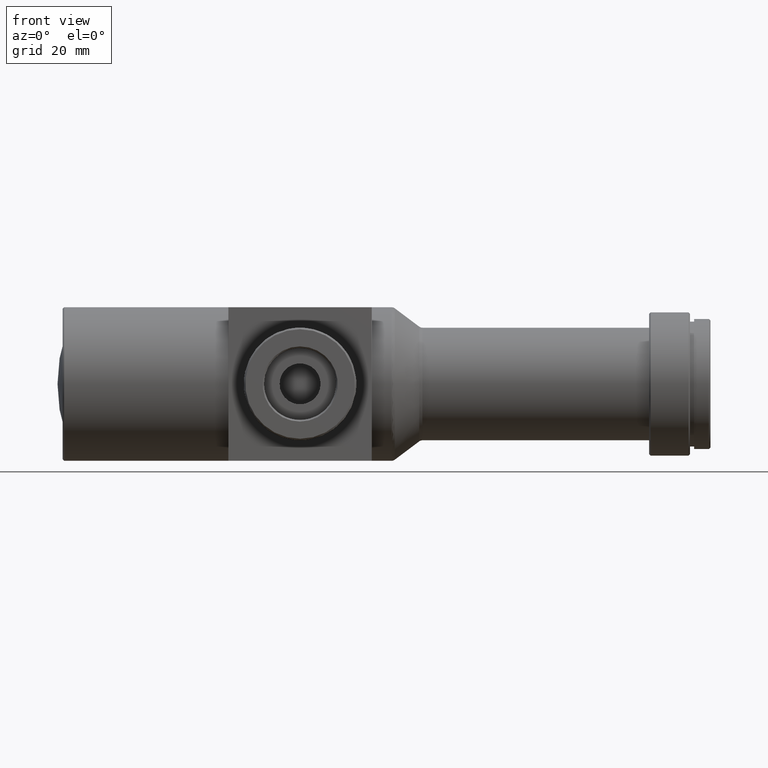
[diagram: clean part render]
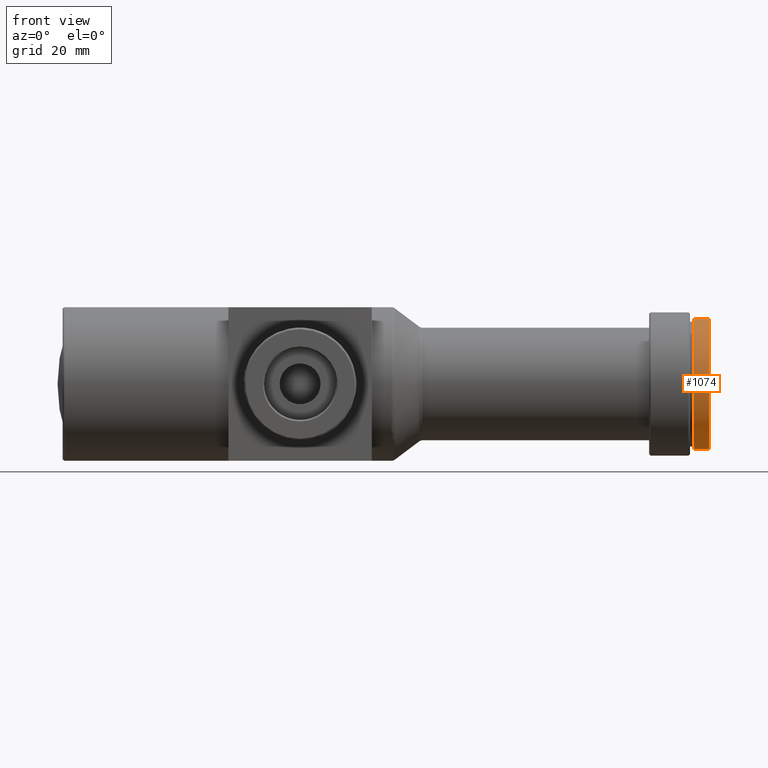
[diagram: same view with one face highlighted and labeled with its STEP entity id]
A machine part, front view. The second image highlights one B-rep face of the part: STEP entity #1074.
In plain terms, the highlighted cylindrical surface (bore or boss wall) has radius 12.7 mm, axis along (-1, -0, -0).
Its self-contained STEP definition (entity closure, byte-faithful):
#11 = AXIS2_PLACEMENT_3D ( 'NONE', #1099, #325, #984 ) ;
#96 = FACE_OUTER_BOUND ( 'NONE', #1103, .T. ) ;
#106 = FACE_OUTER_BOUND ( 'NONE', #750, .T. ) ;
#140 = EDGE_CURVE ( 'NONE', #597, #597, #670, .T. ) ;
#218 = VERTEX_POINT ( 'NONE', #439 ) ;
#246 = CIRCLE ( 'NONE', #11, 12.69999999999999396 ) ;
#301 = EDGE_CURVE ( 'NONE', #218, #218, #246, .T. ) ;
#325 = DIRECTION ( 'NONE',  ( 1.000000000000000000, 0.000000000000000000, 0.000000000000000000 ) ) ;
#439 = CARTESIAN_POINT ( 'NONE',  ( 123.3999999999999915, 0.000000000000000000, 12.69999999999999396 ) ) ;
#476 = DIRECTION ( 'NONE',  ( -1.000000000000000000, -0.000000000000000000, -0.000000000000000000 ) ) ;
#557 = AXIS2_PLACEMENT_3D ( 'NONE', #1046, #476, #856 ) ;
#597 = VERTEX_POINT ( 'NONE', #1155 ) ;
#634 = ORIENTED_EDGE ( 'NONE', *, *, #301, .T. ) ;
#670 = CIRCLE ( 'NONE', #1003, 12.69999999999999396 ) ;
#710 = DIRECTION ( 'NONE',  ( -1.000000000000000000, -0.000000000000000000, -0.000000000000000000 ) ) ;
#750 = EDGE_LOOP ( 'NONE', ( #1042 ) ) ;
#856 = DIRECTION ( 'NONE',  ( 0.000000000000000000, 0.000000000000000000, 1.000000000000000000 ) ) ;
#984 = DIRECTION ( 'NONE',  ( 0.000000000000000000, 0.000000000000000000, 1.000000000000000000 ) ) ;
#987 = DIRECTION ( 'NONE',  ( 0.000000000000000000, 0.000000000000000000, 1.000000000000000000 ) ) ;
#1003 = AXIS2_PLACEMENT_3D ( 'NONE', #1174, #710, #987 ) ;
#1041 = CYLINDRICAL_SURFACE ( 'NONE', #557, 12.69999999999999396 ) ;
#1042 = ORIENTED_EDGE ( 'NONE', *, *, #140, .T. ) ;
#1046 = CARTESIAN_POINT ( 'NONE',  ( 0.000000000000000000, 0.000000000000000000, 0.000000000000000000 ) ) ;
#1074 = ADVANCED_FACE ( 'NONE', ( #96, #106 ), #1041, .T. ) ;
#1099 = CARTESIAN_POINT ( 'NONE',  ( 123.3999999999999915, 0.000000000000000000, 0.000000000000000000 ) ) ;
#1103 = EDGE_LOOP ( 'NONE', ( #634 ) ) ;
#1155 = CARTESIAN_POINT ( 'NONE',  ( 126.3000000000000256, 0.000000000000000000, 12.69999999999999396 ) ) ;
#1174 = CARTESIAN_POINT ( 'NONE',  ( 126.3000000000000256, 0.000000000000000000, 0.000000000000000000 ) ) ;